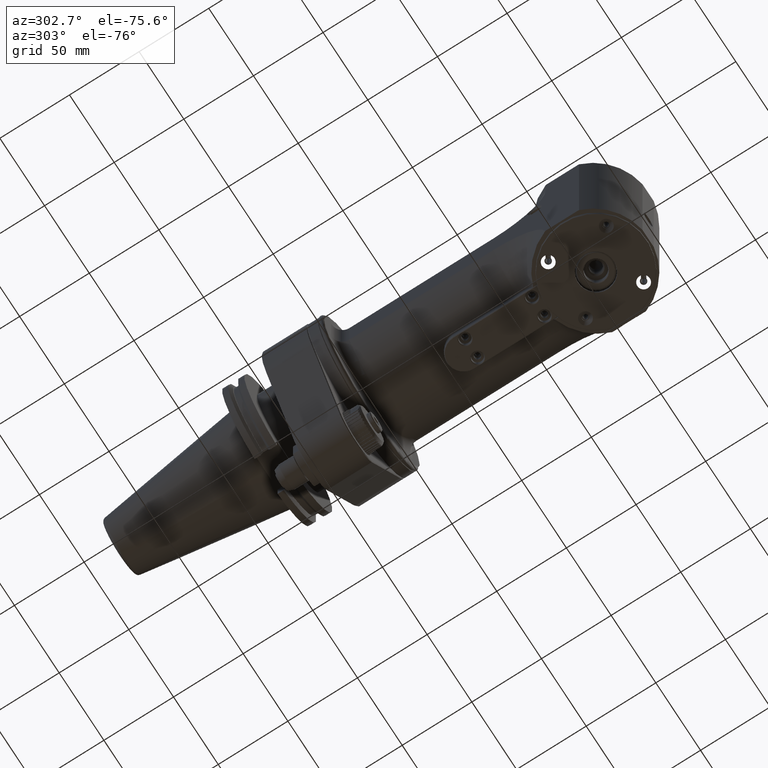
[diagram: clean part render]
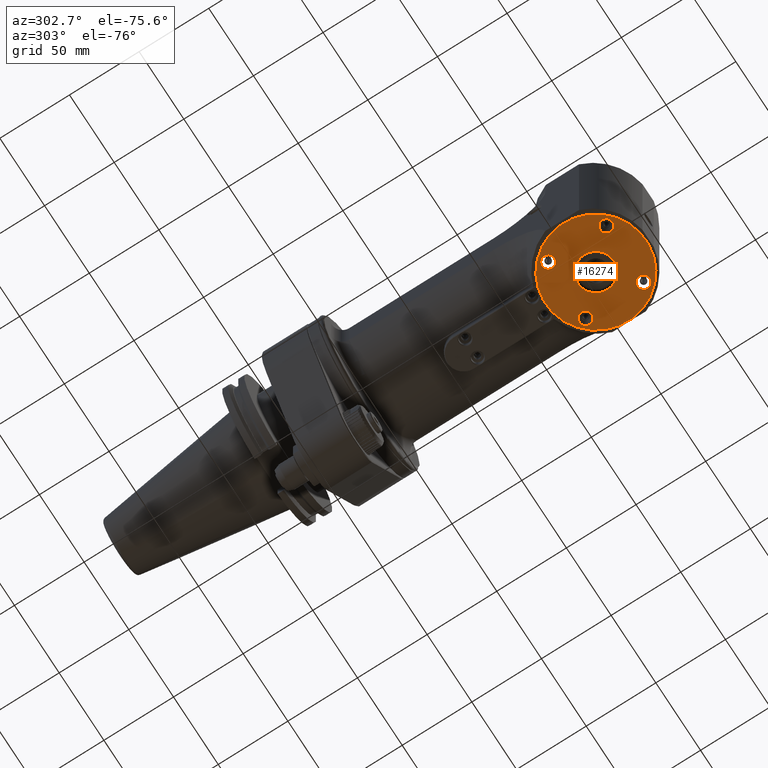
[diagram: same view with one face highlighted and labeled with its STEP entity id]
A machine part, auxiliary view. The second image highlights one B-rep face of the part: STEP entity #16274.
In plain terms, the highlighted planar face has unit normal (-0, 0, -1).
Its self-contained STEP definition (entity closure, byte-faithful):
#174=FACE_BOUND('',#3165,.T.);
#175=FACE_BOUND('',#3166,.T.);
#176=FACE_BOUND('',#3167,.T.);
#177=FACE_BOUND('',#3168,.T.);
#178=FACE_BOUND('',#3169,.T.);
#1207=CIRCLE('',#17692,36.29998815272);
#1208=CIRCLE('',#17694,4.5);
#1209=CIRCLE('',#17695,4.5);
#1210=CIRCLE('',#17696,4.5);
#1211=CIRCLE('',#17697,4.5);
#1212=CIRCLE('',#17698,12.9499378203);
#2188=FACE_OUTER_BOUND('',#3164,.T.);
#3164=EDGE_LOOP('',(#12897));
#3165=EDGE_LOOP('',(#12898));
#3166=EDGE_LOOP('',(#12899));
#3167=EDGE_LOOP('',(#12900));
#3168=EDGE_LOOP('',(#12901));
#3169=EDGE_LOOP('',(#12902));
#7198=VERTEX_POINT('',#26965);
#7199=VERTEX_POINT('',#26969);
#7200=VERTEX_POINT('',#26971);
#7201=VERTEX_POINT('',#26973);
#7202=VERTEX_POINT('',#26975);
#7203=VERTEX_POINT('',#26977);
#9231=EDGE_CURVE('',#7198,#7198,#1207,.T.);
#9232=EDGE_CURVE('',#7199,#7199,#1208,.T.);
#9233=EDGE_CURVE('',#7200,#7200,#1209,.T.);
#9234=EDGE_CURVE('',#7201,#7201,#1210,.T.);
#9235=EDGE_CURVE('',#7202,#7202,#1211,.T.);
#9236=EDGE_CURVE('',#7203,#7203,#1212,.T.);
#12897=ORIENTED_EDGE('',*,*,#9231,.T.);
#12898=ORIENTED_EDGE('',*,*,#9232,.T.);
#12899=ORIENTED_EDGE('',*,*,#9233,.T.);
#12900=ORIENTED_EDGE('',*,*,#9234,.T.);
#12901=ORIENTED_EDGE('',*,*,#9235,.T.);
#12902=ORIENTED_EDGE('',*,*,#9236,.F.);
#15618=PLANE('',#17693);
#16274=ADVANCED_FACE('',(#2188,#174,#175,#176,#177,#178),#15618,.T.);
#17692=AXIS2_PLACEMENT_3D('',#26967,#20987,#20988);
#17693=AXIS2_PLACEMENT_3D('',#26968,#20989,#20990);
#17694=AXIS2_PLACEMENT_3D('',#26970,#20991,#20992);
#17695=AXIS2_PLACEMENT_3D('',#26972,#20993,#20994);
#17696=AXIS2_PLACEMENT_3D('',#26974,#20995,#20996);
#17697=AXIS2_PLACEMENT_3D('',#26976,#20997,#20998);
#17698=AXIS2_PLACEMENT_3D('',#26978,#20999,#21000);
#20987=DIRECTION('center_axis',(0.,0.,-1.));
#20988=DIRECTION('ref_axis',(0.707106781186597,-0.707106781186498,0.));
#20989=DIRECTION('center_axis',(0.,0.,-1.));
#20990=DIRECTION('ref_axis',(-0.707106781186548,0.707106781186548,0.));
#20991=DIRECTION('center_axis',(0.,0.,1.));
#20992=DIRECTION('ref_axis',(-0.707106781186548,-0.707106781186548,0.));
#20993=DIRECTION('center_axis',(0.,0.,1.));
#20994=DIRECTION('ref_axis',(-0.707106781186548,-0.707106781186548,0.));
#20995=DIRECTION('center_axis',(0.,0.,1.));
#20996=DIRECTION('ref_axis',(-0.707106781186548,-0.707106781186548,0.));
#20997=DIRECTION('center_axis',(0.,0.,1.));
#20998=DIRECTION('ref_axis',(-0.707106781186548,-0.707106781186548,0.));
#20999=DIRECTION('center_axis',(0.,0.,-1.));
#21000=DIRECTION('ref_axis',(-0.707106781186498,0.707106781186598,0.));
#26965=CARTESIAN_POINT('',(-25.66796777978,25.66796777978,-49.));
#26967=CARTESIAN_POINT('Origin',(6.508731393343E-13,-1.31171512958E-12,
-49.));
#26968=CARTESIAN_POINT('Origin',(1.843406509932E-14,0.,-49.));
#26969=CARTESIAN_POINT('',(-24.0416305603395,17.6776695296605,-49.));
#26970=CARTESIAN_POINT('Origin',(-20.859650045,20.859650045,-49.));
#26971=CARTESIAN_POINT('',(-24.0416305603395,-24.0416305603395,-49.));
#26972=CARTESIAN_POINT('Origin',(-20.859650045,-20.859650045,-49.));
#26973=CARTESIAN_POINT('',(17.6776695296605,-24.0416305603395,-49.));
#26974=CARTESIAN_POINT('Origin',(20.859650045,-20.859650045,-49.));
#26975=CARTESIAN_POINT('',(17.6776695296605,17.6776695296605,-49.));
#26976=CARTESIAN_POINT('Origin',(20.859650045,20.859650045,-49.));
#26977=CARTESIAN_POINT('',(-9.15698884867694,9.15698884867686,-49.000000000002));
#26978=CARTESIAN_POINT('Origin',(-8.442674300583E-14,0.,-49.));